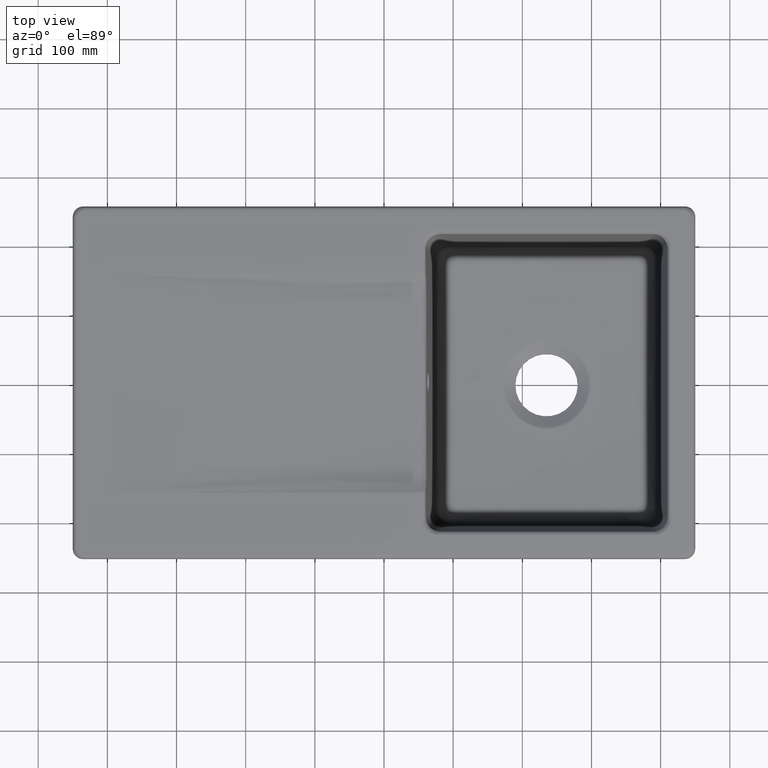
[diagram: clean part render]
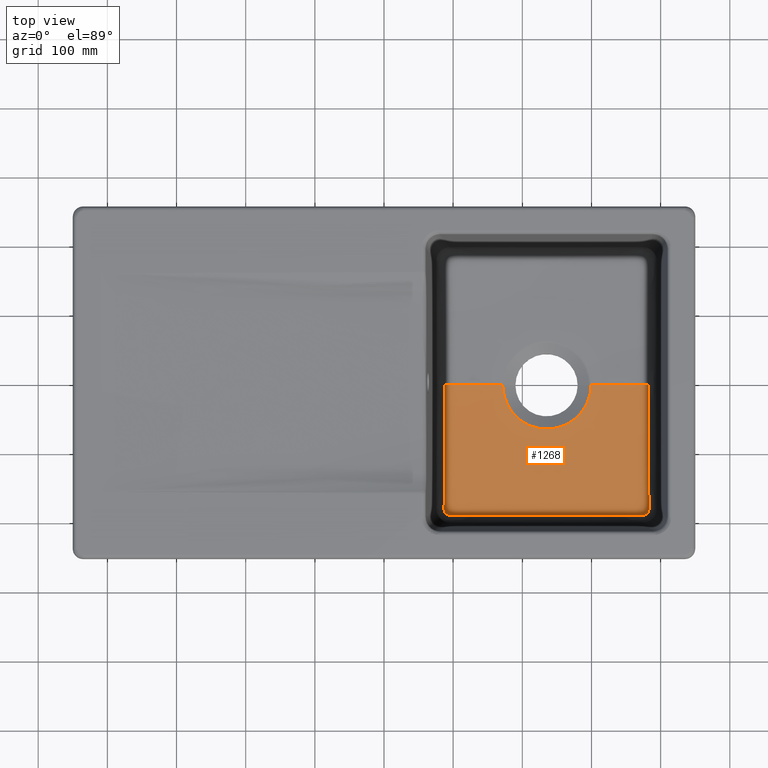
[diagram: same view with one face highlighted and labeled with its STEP entity id]
A machine part, top view. The second image highlights one B-rep face of the part: STEP entity #1268.
In plain terms, the highlighted face is a freeform B-spline surface patch.
Its self-contained STEP definition (entity closure, byte-faithful):
#58=B_SPLINE_SURFACE_WITH_KNOTS('',3,3,((#10908,#10909,#10910,#10911,#10912,
#10913,#10914,#10915,#10916,#10917,#10918,#10919,#10920,#10921,#10922,#10923,
#10924,#10925,#10926,#10927,#10928,#10929,#10930,#10931,#10932,#10933,#10934,
#10935,#10936,#10937,#10938,#10939,#10940),(#10941,#10942,#10943,#10944,
#10945,#10946,#10947,#10948,#10949,#10950,#10951,#10952,#10953,#10954,#10955,
#10956,#10957,#10958,#10959,#10960,#10961,#10962,#10963,#10964,#10965,#10966,
#10967,#10968,#10969,#10970,#10971,#10972,#10973),(#10974,#10975,#10976,
#10977,#10978,#10979,#10980,#10981,#10982,#10983,#10984,#10985,#10986,#10987,
#10988,#10989,#10990,#10991,#10992,#10993,#10994,#10995,#10996,#10997,#10998,
#10999,#11000,#11001,#11002,#11003,#11004,#11005,#11006),(#11007,#11008,
#11009,#11010,#11011,#11012,#11013,#11014,#11015,#11016,#11017,#11018,#11019,
#11020,#11021,#11022,#11023,#11024,#11025,#11026,#11027,#11028,#11029,#11030,
#11031,#11032,#11033,#11034,#11035,#11036,#11037,#11038,#11039),(#11040,
#11041,#11042,#11043,#11044,#11045,#11046,#11047,#11048,#11049,#11050,#11051,
#11052,#11053,#11054,#11055,#11056,#11057,#11058,#11059,#11060,#11061,#11062,
#11063,#11064,#11065,#11066,#11067,#11068,#11069,#11070,#11071,#11072)),
 .UNSPECIFIED.,.F.,.F.,.F.,(4,1,4),(4,1,1,1,1,1,1,1,1,1,1,1,1,1,1,1,1,1,
1,1,1,1,1,1,1,1,1,1,1,1,4),(0.,0.5,1.),(0.,0.0182822600109701,0.0360122226244295,
0.055209519864422,0.0751187496988799,0.10509401807433,0.135114973698303,
0.19571552190458,0.256528921859647,0.317281157809423,0.347584041887708,
0.408211742375118,0.438983846352484,0.459736538004095,0.480038020137505,
0.489772786739409,0.499091398083266,0.508408575169084,0.518143376880388,
0.559134169580644,0.589793766048091,0.65030788970817,0.710896522901048,
0.802137506428954,0.832585011789854,0.862887276247565,0.892955427108568,
0.922935094436198,0.94283156446179,0.979716037055675,1.),.UNSPECIFIED.);
#330=B_SPLINE_CURVE_WITH_KNOTS('',3,(#7163,#7164,#7165,#7166,#7167,#7168,
#7169,#7170,#7171,#7172,#7173,#7174,#7175,#7176,#7177,#7178,#7179,#7180,
#7181,#7182,#7183,#7184,#7185,#7186,#7187,#7188,#7189,#7190,#7191,#7192,
#7193,#7194,#7195,#7196,#7197,#7198,#7199,#7200,#7201,#7202,#7203,#7204,
#7205,#7206,#7207,#7208,#7209,#7210,#7211,#7212,#7213,#7214,#7215,#7216,
#7217,#7218,#7219,#7220,#7221,#7222,#7223,#7224,#7225,#7226,#7227,#7228,
#7229,#7230,#7231,#7232,#7233,#7234,#7235,#7236,#7237,#7238,#7239,#7240,
#7241,#7242,#7243,#7244,#7245,#7246,#7247,#7248,#7249,#7250,#7251,#7252,
#7253,#7254,#7255,#7256,#7257,#7258,#7259,#7260,#7261,#7262,#7263,#7264,
#7265,#7266,#7267,#7268,#7269,#7270,#7271,#7272,#7273,#7274,#7275,#7276,
#7277,#7278,#7279,#7280,#7281,#7282,#7283,#7284,#7285,#7286,#7287,#7288,
#7289,#7290,#7291,#7292,#7293,#7294,#7295,#7296,#7297,#7298,#7299,#7300,
#7301,#7302,#7303,#7304,#7305,#7306),.UNSPECIFIED.,.F.,.F.,(4,2,2,2,2,2,
2,2,2,2,2,2,2,2,1,2,2,2,2,2,2,2,1,2,2,2,2,2,2,2,2,2,2,2,2,1,2,2,2,2,2,1,
2,2,2,2,1,1,1,2,2,2,2,2,2,1,1,2,2,2,2,2,2,2,2,2,2,1,1,2,2,2,2,2,1,2,2,4),
(0.,0.0312499999999965,0.035156249999996,0.0390624999999955,0.0468749999999946,
0.0624999999999929,0.0703124999999921,0.0742187499999916,0.0781249999999912,
0.0937499999999891,0.124999999999985,0.140624999999983,0.142578124999982,
0.14355468749998,0.144531249999979,0.148437499999973,0.156249999999961,
0.187499999999912,0.218749999999864,0.23437499999984,0.242187499999828,
0.246093749999821,0.248046874999816,0.249023437499815,0.249999999999814,
0.312499999999784,0.343749999999769,0.359374999999762,0.367187499999758,
0.374999999999754,0.43749999999972,0.468749999999704,0.484374999999695,
0.492187499999691,0.496093749999689,0.498046874999688,0.499023437499687,
0.499999999999687,0.515624999999673,0.523437499999667,0.527343749999663,
0.529296874999661,0.53027343749966,0.531249999999659,0.546874999999646,
0.554687499999639,0.558593749999636,0.560546874999634,0.561523437499633,
0.562011718749633,0.562499999999632,0.593749999999605,0.609374999999592,
0.617187499999585,0.621093749999582,0.623046874999581,0.624023437499582,
0.624511718749583,0.624999999999584,0.687499999999654,0.718749999999689,
0.734374999999707,0.742187499999715,0.749999999999724,0.812499999999793,
0.843749999999827,0.859374999999845,0.867187499999853,0.871093749999858,
0.87304687499986,0.874999999999862,0.906249999999896,0.921874999999913,
0.929687499999922,0.933593749999926,0.935546874999928,0.937499999999931,
1.),.UNSPECIFIED.);
#334=B_SPLINE_CURVE_WITH_KNOTS('',3,(#7482,#7483,#7484,#7485,#7486,#7487,
#7488,#7489,#7490,#7491,#7492,#7493,#7494,#7495,#7496,#7497,#7498,#7499,
#7500,#7501,#7502,#7503,#7504,#7505,#7506,#7507,#7508,#7509,#7510,#7511,
#7512,#7513,#7514,#7515,#7516,#7517,#7518,#7519,#7520,#7521,#7522,#7523,
#7524,#7525,#7526,#7527,#7528,#7529,#7530,#7531,#7532,#7533,#7534,#7535,
#7536,#7537),.UNSPECIFIED.,.F.,.F.,(4,2,2,2,2,2,2,2,2,2,2,2,2,2,2,2,2,2,
2,2,2,2,2,2,2,2,2,4),(0.,0.124999999999994,0.187499999999991,0.218749999999989,
0.234374999999988,0.249999999999987,0.312499999999984,0.343749999999983,
0.359374999999982,0.367187499999982,0.371093749999982,0.374999999999982,
0.437499999999983,0.468749999999984,0.499999999999984,0.531249999999985,
0.562499999999985,0.593749999999986,0.609374999999986,0.617187499999987,
0.621093749999987,0.624999999999988,0.687499999999989,0.71874999999999,
0.734374999999991,0.749999999999991,0.874999999999996,1.),.UNSPECIFIED.);
#335=B_SPLINE_CURVE_WITH_KNOTS('',3,(#7582,#7583,#7584,#7585,#7586,#7587),
 .UNSPECIFIED.,.F.,.F.,(4,2,4),(0.,0.5,1.),.UNSPECIFIED.);
#337=B_SPLINE_CURVE_WITH_KNOTS('',3,(#7631,#7632,#7633,#7634,#7635,#7636,
#7637,#7638,#7639,#7640,#7641,#7642,#7643,#7644,#7645,#7646,#7647,#7648,
#7649,#7650,#7651,#7652,#7653,#7654,#7655,#7656,#7657,#7658,#7659,#7660,
#7661,#7662,#7663,#7664,#7665,#7666,#7667,#7668,#7669),.UNSPECIFIED.,.F.,
 .F.,(4,2,2,2,1,2,2,2,2,2,1,2,2,2,2,2,2,1,2,2,4),(0.,0.124999999999997,
0.187499999999995,0.218749999999994,0.234374999999994,0.242187499999994,
0.249999999999994,0.374999999999993,0.437499999999993,0.468749999999993,
0.484374999999993,0.492187499999993,0.499999999999993,0.624999999999994,
0.749999999999996,0.812499999999997,0.843749999999998,0.859374999999998,
0.867187499999998,0.874999999999998,1.),.UNSPECIFIED.);
#411=B_SPLINE_CURVE_WITH_KNOTS('',3,(#10851,#10852,#10853,#10854,#10855,
#10856),.UNSPECIFIED.,.F.,.F.,(4,2,4),(0.,0.5,1.),.UNSPECIFIED.);
#412=B_SPLINE_CURVE_WITH_KNOTS('',3,(#10893,#10894,#10895,#10896),
 .UNSPECIFIED.,.F.,.F.,(4,4),(0.,1.),.UNSPECIFIED.);
#413=B_SPLINE_CURVE_WITH_KNOTS('',3,(#10897,#10898,#10899,#10900),
 .UNSPECIFIED.,.F.,.F.,(4,4),(0.,1.),.UNSPECIFIED.);
#414=B_SPLINE_CURVE_WITH_KNOTS('',3,(#10902,#10903,#10904,#10905,#10906,
#10907),.UNSPECIFIED.,.F.,.F.,(4,2,4),(0.,0.5,1.),.UNSPECIFIED.);
#1268=ADVANCED_FACE('',(#1623),#58,.F.);
#1623=FACE_OUTER_BOUND('',#1955,.T.);
#1955=EDGE_LOOP('',(#2667,#2668,#2669,#2670,#2671,#2672,#2673,#2674));
#2667=ORIENTED_EDGE('',*,*,#4483,.F.);
#2668=ORIENTED_EDGE('',*,*,#4242,.T.);
#2669=ORIENTED_EDGE('',*,*,#4484,.F.);
#2670=ORIENTED_EDGE('',*,*,#4485,.F.);
#2671=ORIENTED_EDGE('',*,*,#4482,.T.);
#2672=ORIENTED_EDGE('',*,*,#4248,.T.);
#2673=ORIENTED_EDGE('',*,*,#4250,.T.);
#2674=ORIENTED_EDGE('',*,*,#4252,.T.);
#3778=VERTEX_POINT('',#7161);
#3780=VERTEX_POINT('',#7307);
#3783=VERTEX_POINT('',#7475);
#3784=VERTEX_POINT('',#7481);
#3785=VERTEX_POINT('',#7581);
#3786=VERTEX_POINT('',#7630);
#3933=VERTEX_POINT('',#10844);
#3934=VERTEX_POINT('',#10901);
#4242=EDGE_CURVE('',#3780,#3778,#330,.T.);
#4248=EDGE_CURVE('',#3783,#3784,#334,.T.);
#4250=EDGE_CURVE('',#3784,#3785,#335,.T.);
#4252=EDGE_CURVE('',#3785,#3786,#337,.T.);
#4482=EDGE_CURVE('',#3933,#3783,#411,.T.);
#4483=EDGE_CURVE('',#3780,#3786,#412,.T.);
#4484=EDGE_CURVE('',#3934,#3778,#413,.T.);
#4485=EDGE_CURVE('',#3933,#3934,#414,.T.);
#7161=CARTESIAN_POINT('',(171.727762321832,-0.000572993895407805,-199.62845366476));
#7163=CARTESIAN_POINT('',(299.273550193894,7.00759071267483E-15,-199.604249388606));
#7164=CARTESIAN_POINT('',(299.269840532558,-2.16390706907349,-199.604235624581));
#7165=CARTESIAN_POINT('',(299.153841019433,-4.24747309736526,-199.604130076474));
#7166=CARTESIAN_POINT('',(298.926286625526,-6.53774754236078,-199.603908011737));
#7167=CARTESIAN_POINT('',(298.899654574148,-6.79147627028867,-199.603881902703));
#7168=CARTESIAN_POINT('',(298.843795265492,-7.29756859948752,-199.603826813834));
#7169=CARTESIAN_POINT('',(298.836170972606,-7.36075327174401,-199.603821815979));
#7170=CARTESIAN_POINT('',(298.781486559071,-7.81854985748282,-199.603795589657));
#7171=CARTESIAN_POINT('',(298.735472837139,-8.1816502582202,-199.603790649915));
#7172=CARTESIAN_POINT('',(298.561217847271,-9.4412479772853,-199.603813465232));
#7173=CARTESIAN_POINT('',(298.39777579229,-10.508102834118,-199.603878856739));
#7174=CARTESIAN_POINT('',(298.032428272484,-12.430875917511,-199.604052186149));
#7175=CARTESIAN_POINT('',(297.890262800521,-13.1256385320876,-199.604122502502));
#7176=CARTESIAN_POINT('',(297.638365820165,-14.2453353747201,-199.604246778843));
#7177=CARTESIAN_POINT('',(297.523591506371,-14.7352747795426,-199.604302988952));
#7178=CARTESIAN_POINT('',(297.299012811196,-15.6436633155172,-199.604406841275));
#7179=CARTESIAN_POINT('',(297.184853743103,-16.0841751471218,-199.604457450122));
#7180=CARTESIAN_POINT('',(296.608499940674,-18.2195012990137,-199.604703909796));
#7181=CARTESIAN_POINT('',(296.130489990299,-19.7126341132357,-199.604880007368));
#7182=CARTESIAN_POINT('',(294.769109791655,-23.5922975131012,-199.605345156912));
#7183=CARTESIAN_POINT('',(293.968971646076,-25.3829364750972,-199.605571071076));
#7184=CARTESIAN_POINT('',(293.218743310676,-27.018129823399,-199.605783836886));
#7185=CARTESIAN_POINT('',(293.041002998343,-27.3872302850941,-199.605833739909));
#7186=CARTESIAN_POINT('',(292.933135516572,-27.6106152914318,-199.605866241695));
#7187=CARTESIAN_POINT('',(292.92241781289,-27.6327648952868,-199.605869524677));
#7188=CARTESIAN_POINT('',(292.908255883663,-27.6619905878416,-199.605873956667));
#7189=CARTESIAN_POINT('',(292.848635048107,-27.7848853786534,-199.605892744999));
#7190=CARTESIAN_POINT('',(292.742791405979,-28.0009882507786,-199.605925844574));
#7191=CARTESIAN_POINT('',(292.477836804825,-28.5381062782322,-199.606008249088));
#7192=CARTESIAN_POINT('',(292.21137208492,-29.0596244640707,-199.606088931663));
#7193=CARTESIAN_POINT('',(291.570522688197,-30.2820432147807,-199.606279265008));
#7194=CARTESIAN_POINT('',(291.141583963824,-31.0580362315344,-199.606401747474));
#7195=CARTESIAN_POINT('',(289.006321766154,-34.7524661412308,-199.606992143981));
#7196=CARTESIAN_POINT('',(287.332303133832,-37.1164389070733,-199.607394015236));
#7197=CARTESIAN_POINT('',(284.419983456189,-40.8700208922557,-199.608057208955));
#7198=CARTESIAN_POINT('',(283.182322649562,-42.2600080419257,-199.608318531421));
#7199=CARTESIAN_POINT('',(281.815326313136,-43.7367969139373,-199.608605270976));
#7200=CARTESIAN_POINT('',(281.440089963518,-44.1272326668004,-199.608683309201));
#7201=CARTESIAN_POINT('',(281.008797345243,-44.5700063302589,-199.608774066602));
#7202=CARTESIAN_POINT('',(280.886901207734,-44.6937403147566,-199.608799935688));
#7203=CARTESIAN_POINT('',(280.737713912196,-44.844369728702,-199.608832165282));
#7204=CARTESIAN_POINT('',(280.693590864178,-44.8887479126318,-199.608841812803));
#7205=CARTESIAN_POINT('',(280.635891730381,-44.94664181899,-199.608854640668));
#7206=CARTESIAN_POINT('',(280.609163208819,-44.9734201371417,-199.608860643746));
#7207=CARTESIAN_POINT('',(280.585627747182,-44.9969567261638,-199.608866030556));
#7208=CARTESIAN_POINT('',(280.570648090966,-45.0119284629216,-199.608869484816));
#7209=CARTESIAN_POINT('',(280.598718796904,-44.9839096549387,-199.608862884786));
#7210=CARTESIAN_POINT('',(277.869768610548,-47.708195239666,-199.609503061415));
#7211=CARTESIAN_POINT('',(274.812499070289,-50.2812306334656,-199.61019293948));
#7212=CARTESIAN_POINT('',(269.649741802729,-53.7926931758676,-199.611316703695));
#7213=CARTESIAN_POINT('',(267.833503216759,-54.9050432735399,-199.611706115602));
#7214=CARTESIAN_POINT('',(264.968846298751,-56.4601959072382,-199.612312415762));
#7215=CARTESIAN_POINT('',(263.990546194635,-56.9596450081439,-199.612518212822));
#7216=CARTESIAN_POINT('',(262.489096237494,-57.676936130162,-199.612832446856));
#7217=CARTESIAN_POINT('',(261.98295454352,-57.9107183133615,-199.612938114605));
#7218=CARTESIAN_POINT('',(260.959594518036,-58.3670523488921,-199.613151295036));
#7219=CARTESIAN_POINT('',(260.403533783387,-58.6057044152544,-199.613266866763));
#7220=CARTESIAN_POINT('',(256.04949346332,-60.4104583226439,-199.614170246152));
#7221=CARTESIAN_POINT('',(252.016824433648,-61.6269821139195,-199.614916481672));
#7222=CARTESIAN_POINT('',(245.905959780804,-62.8482366232828,-199.615948202636));
#7223=CARTESIAN_POINT('',(243.859991784586,-63.1526677006278,-199.616396331725));
#7224=CARTESIAN_POINT('',(240.759359767425,-63.4609407604423,-199.617224427016));
#7225=CARTESIAN_POINT('',(239.720565500203,-63.5390870917548,-199.617526440296));
#7226=CARTESIAN_POINT('',(238.151517311688,-63.6196044290962,-199.618018359723));
#7227=CARTESIAN_POINT('',(237.626471433898,-63.640079524676,-199.618188815985));
#7228=CARTESIAN_POINT('',(236.833521658217,-63.6590893345589,-199.618454214788));
#7229=CARTESIAN_POINT('',(236.568240914908,-63.663455710135,-199.618544300115));
#7230=CARTESIAN_POINT('',(236.169389098933,-63.6670197094028,-199.618681855338));
#7231=CARTESIAN_POINT('',(235.969735524504,-63.6680567943128,-199.618751239757));
#7232=CARTESIAN_POINT('',(235.769849300509,-63.66797439826,-199.618821534125));
#7233=CARTESIAN_POINT('',(235.636552229344,-63.6676704612603,-199.618868599218));
#7234=CARTESIAN_POINT('',(235.51553928392,-63.6670671079716,-199.618911576195));
#7235=CARTESIAN_POINT('',(235.30580259847,-63.6658055467795,-199.618986229552));
#7236=CARTESIAN_POINT('',(234.672894642806,-63.6713814324954,-199.619071820285));
#7237=CARTESIAN_POINT('',(233.086208368352,-63.62560775173,-199.619223187342));
#7238=CARTESIAN_POINT('',(232.453397659437,-63.6003135742308,-199.619277473143));
#7239=CARTESIAN_POINT('',(231.354328127307,-63.5338925066118,-199.619364645089));
#7240=CARTESIAN_POINT('',(230.962770312725,-63.5070191522065,-199.619394659608));
#7241=CARTESIAN_POINT('',(230.337625429807,-63.4578127685665,-199.619441116927));
#7242=CARTESIAN_POINT('',(230.015629227517,-63.4309717604852,-199.619464704471));
#7243=CARTESIAN_POINT('',(229.67959621995,-63.4003729942119,-199.61948883029));
#7244=CARTESIAN_POINT('',(229.452465513813,-63.3790926297628,-199.61950503378));
#7245=CARTESIAN_POINT('',(229.282227927754,-63.3625579500713,-199.619517079347));
#7246=CARTESIAN_POINT('',(228.235862009586,-63.2590189241484,-199.619590814059));
#7247=CARTESIAN_POINT('',(227.2286627867,-63.1358316014941,-199.619693577507));
#7248=CARTESIAN_POINT('',(225.68390226905,-62.9084345273022,-199.619897739973));
#7249=CARTESIAN_POINT('',(225.163313283356,-62.825451525681,-199.619974130129));
#7250=CARTESIAN_POINT('',(224.373801790447,-62.689230770206,-199.620101213451));
#7251=CARTESIAN_POINT('',(223.976888292721,-62.6181829548676,-199.620167879614));
#7252=CARTESIAN_POINT('',(223.510010883161,-62.5299316598622,-199.620251123175));
#7253=CARTESIAN_POINT('',(223.27561415796,-62.4844370428897,-199.620294111344));
#7254=CARTESIAN_POINT('',(223.174952564447,-62.4646429360494,-199.62031282762));
#7255=CARTESIAN_POINT('',(223.10779902557,-62.4513806527505,-199.620325370197));
#7256=CARTESIAN_POINT('',(223.102862045485,-62.4504259294413,-199.620326272389));
#7257=CARTESIAN_POINT('',(219.054317147125,-61.6439677080936,-199.621089240458));
#7258=CARTESIAN_POINT('',(216.109567690488,-60.6870286247917,-199.621655302677));
#7259=CARTESIAN_POINT('',(213.164437535751,-59.6388147017971,-199.622227615664));
#7260=CARTESIAN_POINT('',(212.426592144149,-59.3503985788373,-199.622372250008));
#7261=CARTESIAN_POINT('',(211.672543231987,-59.0496938474524,-199.622520058632));
#7262=CARTESIAN_POINT('',(211.480029448268,-58.9711619230191,-199.622557803945));
#7263=CARTESIAN_POINT('',(211.278525871263,-58.8885135079723,-199.622597139624));
#7264=CARTESIAN_POINT('',(211.22590809461,-58.8668056849956,-199.62260737111));
#7265=CARTESIAN_POINT('',(211.168736701857,-58.8431829674813,-199.622618398002));
#7266=CARTESIAN_POINT('',(211.145590407266,-58.8336048351391,-199.622622831361));
#7267=CARTESIAN_POINT('',(211.128096340543,-58.8263610225391,-199.622626113496));
#7268=CARTESIAN_POINT('',(211.12263617025,-58.8241002083593,-199.622627115103));
#7269=CARTESIAN_POINT('',(211.119448736312,-58.8227806094479,-199.622627692835));
#7270=CARTESIAN_POINT('',(211.148919950571,-58.834974705219,-199.622622562209));
#7271=CARTESIAN_POINT('',(207.023544956643,-57.1280179049041,-199.623341524642));
#7272=CARTESIAN_POINT('',(203.22415275936,-55.0546753316048,-199.623979468553));
#7273=CARTESIAN_POINT('',(198.046220183,-51.5520818721623,-199.624823662318));
#7274=CARTESIAN_POINT('',(196.405461710238,-50.3189676162252,-199.625086272133));
#7275=CARTESIAN_POINT('',(194.073644524545,-48.3902567705251,-199.625452050598));
#7276=CARTESIAN_POINT('',(193.317909253505,-47.7341591801092,-199.625569287309));
#7277=CARTESIAN_POINT('',(192.216657871362,-46.7324578869765,-199.625738113333));
#7278=CARTESIAN_POINT('',(191.854965053698,-46.3956304131006,-199.625793217163));
#7279=CARTESIAN_POINT('',(191.14235792293,-45.7164795897002,-199.625901082603));
#7280=CARTESIAN_POINT('',(190.827265267019,-45.4099122246593,-199.625948495708));
#7281=CARTESIAN_POINT('',(187.395096915628,-41.9840361757639,-199.626460950231));
#7282=CARTESIAN_POINT('',(184.710790229223,-38.6848450499655,-199.626836086787));
#7283=CARTESIAN_POINT('',(181.254045714194,-33.4915085304012,-199.627278505409));
#7284=CARTESIAN_POINT('',(180.196614944554,-31.7194074330048,-199.627405929328));
#7285=CARTESIAN_POINT('',(178.751204706906,-29.0103996607675,-199.6275670157));
#7286=CARTESIAN_POINT('',(178.292852757501,-28.0989123725687,-199.627615702828));
#7287=CARTESIAN_POINT('',(177.640276565304,-26.7202070265303,-199.627681223312));
#7288=CARTESIAN_POINT('',(177.322726004481,-26.0279849767339,-199.627712105995));
#7289=CARTESIAN_POINT('',(176.967487577589,-25.2156371138696,-199.627744850484));
#7290=CARTESIAN_POINT('',(176.818501670178,-24.8664969849021,-199.627758179883));
#7291=CARTESIAN_POINT('',(176.719901311518,-24.6335197626948,-199.627766909719));
#7292=CARTESIAN_POINT('',(176.659058323615,-24.4883222487443,-199.627772227784));
#7293=CARTESIAN_POINT('',(176.03562855501,-22.990556485229,-199.627826238972));
#7294=CARTESIAN_POINT('',(175.392656285809,-21.3111711121974,-199.627855089979));
#7295=CARTESIAN_POINT('',(174.443878485065,-18.3491970731452,-199.627865397864));
#7296=CARTESIAN_POINT('',(174.130792805923,-17.2880212590606,-199.62786333896));
#7297=CARTESIAN_POINT('',(173.681426439907,-15.5808464368911,-199.6278520082));
#7298=CARTESIAN_POINT('',(173.535023039896,-14.9925566771222,-199.62784685754));
#7299=CARTESIAN_POINT('',(173.322595702283,-14.080740502908,-199.627837070873));
#7300=CARTESIAN_POINT('',(173.218178545561,-13.6174876069707,-199.62783166237));
#7301=CARTESIAN_POINT('',(173.116868756869,-13.1431232431951,-199.627825481095));
#7302=CARTESIAN_POINT('',(173.050066590316,-12.8244011157474,-199.627821188516));
#7303=CARTESIAN_POINT('',(173.00952761075,-12.6265782422586,-199.627818423249));
#7304=CARTESIAN_POINT('',(172.180137880586,-8.5140174526497,-199.627759521305));
#7305=CARTESIAN_POINT('',(171.708124328239,-4.43162993315887,-199.627959798969));
#7306=CARTESIAN_POINT('',(171.725373394336,1.82839979499623E-16,-199.628417149039));
#7307=CARTESIAN_POINT('',(299.27118183124,-0.000582822346712521,-199.604291467803));
#7475=CARTESIAN_POINT('',(94.8928084187262,-188.305287693771,-189.588671180414));
#7481=CARTESIAN_POINT('',(375.106947801174,-188.305506058049,-189.5885588756));
#7482=CARTESIAN_POINT('',(94.8928084187262,-188.305287693771,-189.588671180414));
#7483=CARTESIAN_POINT('',(107.205322352133,-188.246177811403,-190.277434960414));
#7484=CARTESIAN_POINT('',(119.122260321844,-188.192895698957,-190.854221967858));
#7485=CARTESIAN_POINT('',(136.555783794353,-188.128489138432,-191.579554026841));
#7486=CARTESIAN_POINT('',(142.291712391833,-188.109106698758,-191.798052458112));
#7487=CARTESIAN_POINT('',(150.81961629223,-188.083663186678,-192.093961085353));
#7488=CARTESIAN_POINT('',(153.649740257914,-188.075773214721,-192.187285504709));
#7489=CARTESIAN_POINT('',(157.881632247001,-188.064512176822,-192.319641766047));
#7490=CARTESIAN_POINT('',(159.290051935942,-188.060850580659,-192.362488461161));
#7491=CARTESIAN_POINT('',(162.10343857733,-188.053611583293,-192.445689983994));
#7492=CARTESIAN_POINT('',(163.459312976273,-188.050160332475,-192.484676206648));
#7493=CARTESIAN_POINT('',(170.723499011926,-188.031513088005,-192.687187709116));
#7494=CARTESIAN_POINT('',(176.514402489006,-188.02150719668,-192.827943579194));
#7495=CARTESIAN_POINT('',(185.237549954931,-188.00357979951,-193.009513087298));
#7496=CARTESIAN_POINT('',(188.152476682903,-187.99764861554,-193.065102557281));
#7497=CARTESIAN_POINT('',(192.549964709281,-187.989639093482,-193.141318806656));
#7498=CARTESIAN_POINT('',(194.01998884037,-187.987111982281,-193.165529168816));
#7499=CARTESIAN_POINT('',(196.233215846235,-187.983588840742,-193.20007764898));
#7500=CARTESIAN_POINT('',(196.97232414341,-187.982458691667,-193.211299273826));
#7501=CARTESIAN_POINT('',(198.083280552459,-187.980833205105,-193.2276928758));
#7502=CARTESIAN_POINT('',(198.45398961797,-187.980302971676,-193.233084269031));
#7503=CARTESIAN_POINT('',(199.196163230083,-187.979266012245,-193.243721250038));
#7504=CARTESIAN_POINT('',(199.538544583928,-187.978797992775,-193.248562278934));
#7505=CARTESIAN_POINT('',(206.353315074381,-187.96972700461,-193.343379367174));
#7506=CARTESIAN_POINT('',(212.576159231097,-187.939019207392,-193.409577962278));
#7507=CARTESIAN_POINT('',(221.407678098176,-187.933406925674,-193.475730155261));
#7508=CARTESIAN_POINT('',(224.276647510342,-187.937032395704,-193.492246806653));
#7509=CARTESIAN_POINT('',(229.80242863344,-187.949824508141,-193.514330347973));
#7510=CARTESIAN_POINT('',(232.412514901906,-187.956559832953,-193.519897301486));
#7511=CARTESIAN_POINT('',(237.5439566194,-187.956407606904,-193.520121196963));
#7512=CARTESIAN_POINT('',(240.153308377651,-187.948907816249,-193.514733010392));
#7513=CARTESIAN_POINT('',(245.669114103334,-187.92868789659,-193.492917327079));
#7514=CARTESIAN_POINT('',(248.535278841791,-187.9237093534,-193.476489830148));
#7515=CARTESIAN_POINT('',(254.425566790772,-187.931398604971,-193.432476782512));
#7516=CARTESIAN_POINT('',(257.454295318898,-187.941646079945,-193.404891231433));
#7517=CARTESIAN_POINT('',(262.098972315072,-187.95755384243,-193.354995536586));
#7518=CARTESIAN_POINT('',(263.664077518621,-187.962929056986,-193.336943454363));
#7519=CARTESIAN_POINT('',(266.033530323024,-187.969812186556,-193.307710849072));
#7520=CARTESIAN_POINT('',(266.826976115636,-187.971908848646,-193.297607528078));
#7521=CARTESIAN_POINT('',(268.022104728496,-187.974586177186,-193.281910491867));
#7522=CARTESIAN_POINT('',(268.421307279829,-187.975400605732,-193.276587801578));
#7523=CARTESIAN_POINT('',(269.221280867383,-187.976844071277,-193.265761139412));
#7524=CARTESIAN_POINT('',(269.651988857957,-187.977511982422,-193.259840007249));
#7525=CARTESIAN_POINT('',(275.968762050225,-187.985714500542,-193.171818120845));
#7526=CARTESIAN_POINT('',(281.820573129348,-187.997269262947,-193.070456885281));
#7527=CARTESIAN_POINT('',(290.551375317456,-188.015456873165,-192.888935053829));
#7528=CARTESIAN_POINT('',(293.454390022949,-188.021246430142,-192.8235081629));
#7529=CARTESIAN_POINT('',(297.807768577609,-188.029929649226,-192.717718827461));
#7530=CARTESIAN_POINT('',(299.258630128342,-188.032891301733,-192.681180489943));
#7531=CARTESIAN_POINT('',(302.161100534748,-188.03922703422,-192.605503724293));
#7532=CARTESIAN_POINT('',(303.658996579412,-188.042718601605,-192.565075875654));
#7533=CARTESIAN_POINT('',(316.315768796558,-188.074891698102,-192.212496897802));
#7534=CARTESIAN_POINT('',(327.637386019766,-188.105269930121,-191.821472289886));
#7535=CARTESIAN_POINT('',(350.87794429945,-188.1920644634,-190.854070048983));
#7536=CARTESIAN_POINT('',(362.791327274893,-188.246367762099,-190.277237301033));
#7537=CARTESIAN_POINT('',(375.106947801174,-188.305506058049,-189.5885588756));
#7581=CARTESIAN_POINT('',(383.103446703932,-180.286696462736,-189.717989585248));
#7582=CARTESIAN_POINT('',(375.106947801173,-188.305506058049,-189.5885588756));
#7583=CARTESIAN_POINT('',(377.219390622439,-188.315649783123,-189.470432972575));
#7584=CARTESIAN_POINT('',(379.310915575882,-187.455785246781,-189.415724096933));
#7585=CARTESIAN_POINT('',(382.262749095059,-184.494986110356,-189.463549286828));
#7586=CARTESIAN_POINT('',(383.116526691792,-182.39711456612,-189.566233403684));
#7587=CARTESIAN_POINT('',(383.103446703932,-180.286696462736,-189.717989585248));
#7630=CARTESIAN_POINT('',(382.530524730426,-6.67283187361829E-11,-196.184390104472));
#7631=CARTESIAN_POINT('',(383.103446703932,-180.286696462736,-189.717989585248));
#7632=CARTESIAN_POINT('',(383.054137248023,-172.330758770986,-190.290086044677));
#7633=CARTESIAN_POINT('',(383.011509027148,-164.605958233674,-190.807687551485));
#7634=CARTESIAN_POINT('',(382.950178598819,-153.355461469133,-191.51179140803));
#7635=CARTESIAN_POINT('',(382.930331218144,-149.661331609065,-191.734497860019));
#7636=CARTESIAN_POINT('',(382.901779284141,-144.202005694637,-192.051821737241));
#7637=CARTESIAN_POINT('',(382.892472901219,-142.395867778298,-192.154806209851));
#7638=CARTESIAN_POINT('',(382.878934736579,-139.706772854458,-192.305247063891));
#7639=CARTESIAN_POINT('',(382.872271634602,-138.36725260589,-192.379458447143));
#7640=CARTESIAN_POINT('',(382.86579259976,-137.035201449648,-192.452183548547));
#7641=CARTESIAN_POINT('',(382.861517286874,-136.148818659797,-192.500339646102));
#7642=CARTESIAN_POINT('',(382.859651278481,-135.759142636982,-192.521419680588));
#7643=CARTESIAN_POINT('',(382.81984298684,-127.35716367204,-192.973391833762));
#7644=CARTESIAN_POINT('',(382.788463202822,-119.666427950954,-193.349455462872));
#7645=CARTESIAN_POINT('',(382.744207311563,-108.417447869975,-193.850449740716));
#7646=CARTESIAN_POINT('',(382.730053932968,-104.715425251884,-194.006912591093));
#7647=CARTESIAN_POINT('',(382.709655272132,-99.2268738918012,-194.22699861944));
#7648=CARTESIAN_POINT('',(382.702970655843,-97.4081116269745,-194.297924770122));
#7649=CARTESIAN_POINT('',(382.693284046345,-94.6949196170766,-194.400799172218));
#7650=CARTESIAN_POINT('',(382.688533310532,-93.3420528833077,-194.4513575593));
#7651=CARTESIAN_POINT('',(382.683975140085,-91.9945220506656,-194.500622804661));
#7652=CARTESIAN_POINT('',(382.680985191863,-91.097323986798,-194.5331816558));
#7653=CARTESIAN_POINT('',(382.679633698838,-90.68622141711,-194.547998966494));
#7654=CARTESIAN_POINT('',(382.65307629015,-82.4518163661463,-194.842369764914));
#7655=CARTESIAN_POINT('',(382.624752225607,-74.8888708264043,-195.077539139113));
#7656=CARTESIAN_POINT('',(382.588458441394,-59.9437811454128,-195.476315153566));
#7657=CARTESIAN_POINT('',(382.580432686227,-52.517120628615,-195.640884880951));
#7658=CARTESIAN_POINT('',(382.561932257488,-41.4057148493414,-195.837940500529));
#7659=CARTESIAN_POINT('',(382.556696817783,-37.6922350811345,-195.895498032887));
#7660=CARTESIAN_POINT('',(382.550036855048,-32.0659209876066,-195.970280474747));
#7661=CARTESIAN_POINT('',(382.547964466865,-30.1809950089295,-195.993280619218));
#7662=CARTESIAN_POINT('',(382.544704047245,-27.3340580716145,-196.024954295323));
#7663=CARTESIAN_POINT('',(382.543064445358,-25.9059557862579,-196.04008433942));
#7664=CARTESIAN_POINT('',(382.541583557444,-24.4720411451299,-196.054164843523));
#7665=CARTESIAN_POINT('',(382.540648851565,-23.514933792763,-196.063319699315));
#7666=CARTESIAN_POINT('',(382.540236137714,-23.0691799361822,-196.067478606874));
#7667=CARTESIAN_POINT('',(382.53284804053,-14.3475698789797,-196.146499145205));
#7668=CARTESIAN_POINT('',(382.530689384825,-6.69962432936453,-196.183421543926));
#7669=CARTESIAN_POINT('',(382.530522260224,-4.98732999343332E-14,-196.184347354025));
#10844=CARTESIAN_POINT('',(86.8964019951604,-180.286618370483,-189.717826167532));
#10851=CARTESIAN_POINT('',(86.8964019951604,-180.286618370483,-189.717826167532));
#10852=CARTESIAN_POINT('',(86.8832892640871,-182.396321139124,-189.566135360807));
#10853=CARTESIAN_POINT('',(87.7332401434783,-184.488131387854,-189.463711859104));
#10854=CARTESIAN_POINT('',(90.6834763060324,-187.453114549347,-189.415603603013));
#10855=CARTESIAN_POINT('',(92.7792910315439,-188.315434262118,-189.47044071728));
#10856=CARTESIAN_POINT('',(94.8928084187262,-188.305287693771,-189.588671180414));
#10893=CARTESIAN_POINT('',(299.273550193894,-6.47824313333245E-15,-199.604249388606));
#10894=CARTESIAN_POINT('',(327.038313349279,-2.11001478352639E-14,-198.926959162089));
#10895=CARTESIAN_POINT('',(354.798338377653,-3.80336872747352E-14,-197.786585375231));
#10896=CARTESIAN_POINT('',(382.530522260225,-5.63585919470815E-14,-196.184347354025));
#10897=CARTESIAN_POINT('',(87.4694777241035,1.52401977361012E-14,-196.184347353119));
#10898=CARTESIAN_POINT('',(115.534244760399,7.20630124563856E-15,-197.805800499296));
#10899=CARTESIAN_POINT('',(143.627524726532,-6.32483338043517E-16,-198.954245005654));
#10900=CARTESIAN_POINT('',(171.725373394336,-7.55929711413079E-15,-199.628417149039));
#10901=CARTESIAN_POINT('',(87.4694745177024,-6.23357795893805E-10,-196.184402791081));
#10902=CARTESIAN_POINT('',(86.8964019951604,-180.286618370483,-189.717826167532));
#10903=CARTESIAN_POINT('',(87.0829254658145,-150.276592812826,-191.875592086468));
#10904=CARTESIAN_POINT('',(87.2285062134886,-120.24701754937,-193.49128766103));
#10905=CARTESIAN_POINT('',(87.4187523447311,-60.1506371637757,-195.639851156477));
#10906=CARTESIAN_POINT('',(87.4697887327168,-30.118817019407,-196.187667318447));
#10907=CARTESIAN_POINT('',(87.4694738319117,7.23440789717448E-9,-196.184414719773));
#10908=CARTESIAN_POINT('',(-168.362818714798,21.3717152781607,-170.203494257755));
#10909=CARTESIAN_POINT('',(-168.722527126658,14.4366518705363,-170.203494257754));
#10910=CARTESIAN_POINT('',(-169.43107734966,0.776029649867498,-170.203494257753));
#10911=CARTESIAN_POINT('',(-168.353612804678,-23.5367081769214,-170.203494257753));
#10912=CARTESIAN_POINT('',(-165.582119496711,-49.9726266808735,-170.203494257754));
#10913=CARTESIAN_POINT('',(-160.405410120954,-82.1552442991803,-170.203494257753));
#10914=CARTESIAN_POINT('',(-151.748303429336,-117.349464250738,-170.203494257753));
#10915=CARTESIAN_POINT('',(-133.807079049118,-167.405852876357,-170.203494257755));
#10916=CARTESIAN_POINT('',(-102.597022789022,-225.699165469281,-170.20349425775));
#10917=CARTESIAN_POINT('',(-52.1751165204871,-287.134725060829,-170.203494257757));
#10918=CARTESIAN_POINT('',(-0.960063815437842,-329.197692066251,-170.203494257749));
#10919=CARTESIAN_POINT('',(55.8682691132846,-363.23750392291,-170.203494257756));
#10920=CARTESIAN_POINT('',(105.010858310311,-383.656898028384,-170.203494257751));
#10921=CARTESIAN_POINT('',(153.082517370427,-395.453395388047,-170.203494257755));
#10922=CARTESIAN_POINT('',(185.244902069829,-400.609898812137,-170.203494257752));
#10923=CARTESIAN_POINT('',(207.539027098664,-402.940034933891,-170.203494257754));
#10924=CARTESIAN_POINT('',(224.011784055761,-403.908919473124,-170.203494257753));
#10925=CARTESIAN_POINT('',(234.994371782876,-404.156915689849,-170.203494257757));
#10926=CARTESIAN_POINT('',(246.001107890001,-403.917566296092,-170.203494257754));
#10927=CARTESIAN_POINT('',(271.082994269338,-402.399965170511,-170.203494257753));
#10928=CARTESIAN_POINT('',(308.153145974849,-397.590998208825,-170.203494257755));
#10929=CARTESIAN_POINT('',(365.046534462049,-383.642853709925,-170.203494257754));
#10930=CARTESIAN_POINT('',(426.443716553912,-358.12251426303,-170.203494257753));
#10931=CARTESIAN_POINT('',(503.866499231472,-306.428055663889,-170.203494257753));
#10932=CARTESIAN_POINT('',(557.480194519882,-247.159466182525,-170.203494257755));
#10933=CARTESIAN_POINT('',(591.384565428427,-190.595795810982,-170.203494257751));
#10934=CARTESIAN_POINT('',(608.325708232073,-154.817150642229,-170.203494257754));
#10935=CARTESIAN_POINT('',(621.733587875252,-117.380550667248,-170.203494257753));
#10936=CARTESIAN_POINT('',(630.409133565602,-82.1587013062318,-170.203494257755));
#10937=CARTESIAN_POINT('',(636.896811228559,-41.7498557439728,-170.203494257751));
#10938=CARTESIAN_POINT('',(639.803850570327,-5.75715735628188,-170.203494257755));
#10939=CARTESIAN_POINT('',(638.712804640841,16.1480189718366,-170.203494257752));
#10940=CARTESIAN_POINT('',(638.32569005574,23.9202062067223,-170.203494257751));
#10941=CARTESIAN_POINT('',(-108.853932602032,18.3805486546959,-177.68793986752));
#10942=CARTESIAN_POINT('',(-109.159941531461,12.4072095870255,-177.68793986752));
#10943=CARTESIAN_POINT('',(-109.76271502254,0.640982863028234,-177.687939867519));
#10944=CARTESIAN_POINT('',(-108.846122082618,-20.1370021778283,-177.687939867519));
#10945=CARTESIAN_POINT('',(-106.486922840919,-42.6604545360575,-177.68793986752));
#10946=CARTESIAN_POINT('',(-102.077909097554,-70.0546245443672,-177.687939867519));
#10947=CARTESIAN_POINT('',(-94.6995083403086,-100.039378039747,-177.687939867519));
#10948=CARTESIAN_POINT('',(-79.4049255645124,-142.712027192127,-177.687939867521));
#10949=CARTESIAN_POINT('',(-52.7983019511055,-192.406586631769,-177.687939867518));
#10950=CARTESIAN_POINT('',(-9.81465420178834,-244.77981355044,-177.687939867522));
#10951=CARTESIAN_POINT('',(33.8467416022715,-280.638223471575,-177.687939867517));
#10952=CARTESIAN_POINT('',(82.2903072723803,-309.656658537997,-177.687939867521));
#10953=CARTESIAN_POINT('',(124.18994143023,-327.06461249997,-177.687939867518));
#10954=CARTESIAN_POINT('',(165.148617800347,-337.118841443935,-177.687939867521));
#10955=CARTESIAN_POINT('',(192.524102898465,-341.510552091351,-177.687939867519));
#10956=CARTESIAN_POINT('',(211.520656852906,-343.494071886084,-177.68793986752));
#10957=CARTESIAN_POINT('',(225.585574509423,-344.318522192754,-177.687939867519));
#10958=CARTESIAN_POINT('',(234.995373884636,-344.529465335996,-177.687939867524));
#10959=CARTESIAN_POINT('',(244.424974043528,-344.325913788943,-177.687939867519));
#10960=CARTESIAN_POINT('',(265.842421412513,-343.03439340104,-177.687939867519));
#10961=CARTESIAN_POINT('',(297.383897387535,-338.940746460169,-177.687939867521));
#10962=CARTESIAN_POINT('',(345.859450428465,-327.052585512695,-177.68793986752));
#10963=CARTESIAN_POINT('',(398.205802778466,-305.296154391835,-177.68793986752));
#10964=CARTESIAN_POINT('',(464.205274949738,-261.227345679246,-177.687939867519));
#10965=CARTESIAN_POINT('',(509.912120697967,-210.70123929707,-177.68793986752));
#10966=CARTESIAN_POINT('',(538.814501027917,-162.481265380828,-177.687939867518));
#10967=CARTESIAN_POINT('',(553.257014556495,-131.980305557015,-177.68793986752));
#10968=CARTESIAN_POINT('',(564.686975845199,-100.065738938463,-177.687939867519));
#10969=CARTESIAN_POINT('',(572.081064590652,-70.0579318697727,-177.68793986752));
#10970=CARTESIAN_POINT('',(577.60667797818,-35.6602279776667,-177.687939867519));
#10971=CARTESIAN_POINT('',(580.079938006303,-4.98622072707277,-177.68793986752));
#10972=CARTESIAN_POINT('',(579.151584444734,13.8737156381008,-177.687939867519));
#10973=CARTESIAN_POINT('',(578.822194825011,20.565419666066,-177.687939867518));
#10974=CARTESIAN_POINT('',(10.1638396235007,12.3982154077665,-192.656831087049));
#10975=CARTESIAN_POINT('',(9.96522965893395,8.34832502000421,-192.65683108705));
#10976=CARTESIAN_POINT('',(9.57400963169911,0.370889289349645,-192.656831087052));
#10977=CARTESIAN_POINT('',(10.1688593615015,-13.3375901796422,-192.656831087052));
#10978=CARTESIAN_POINT('',(11.7034704706653,-28.0361102464257,-192.656831087052));
#10979=CARTESIAN_POINT('',(14.5770929492478,-45.8533850347409,-192.656831087052));
#10980=CARTESIAN_POINT('',(19.3980818377461,-65.4192056177654,-192.656831087052));
#10981=CARTESIAN_POINT('',(29.399381404698,-93.3243758236682,-192.656831087051));
#10982=CARTESIAN_POINT('',(46.7991397247267,-125.821428956745,-192.656831087053));
#10983=CARTESIAN_POINT('',(74.9062704356092,-160.069990529663,-192.656831087052));
#10984=CARTESIAN_POINT('',(103.46035243769,-183.519286282222,-192.656831087053));
#10985=CARTESIAN_POINT('',(135.134383590572,-202.494967768168,-192.656831087052));
#10986=CARTESIAN_POINT('',(162.548107670066,-213.880041443144,-192.656831087053));
#10987=CARTESIAN_POINT('',(189.280818660186,-220.449733555712,-192.656831087052));
#10988=CARTESIAN_POINT('',(207.082504555739,-223.31185864978,-192.656831087052));
#10989=CARTESIAN_POINT('',(219.483916361388,-224.60214579047,-192.656831087052));
#10990=CARTESIAN_POINT('',(228.733155416746,-225.137727632015,-192.656831087051));
#10991=CARTESIAN_POINT('',(234.997378088156,-225.274564628289,-192.656831087057));
#10992=CARTESIAN_POINT('',(241.272706350583,-225.142608774645,-192.656831087051));
#10993=CARTESIAN_POINT('',(255.361275698865,-224.303249862099,-192.656831087053));
#10994=CARTESIAN_POINT('',(275.845400212907,-221.640242962859,-192.656831087053));
#10995=CARTESIAN_POINT('',(307.485282361297,-213.872049118235,-192.656831087052));
#10996=CARTESIAN_POINT('',(341.729975227573,-199.643434649447,-192.656831087052));
#10997=CARTESIAN_POINT('',(384.882826386271,-170.82592570996,-192.656831087052));
#10998=CARTESIAN_POINT('',(414.775973054136,-137.78478552616,-192.656831087052));
#10999=CARTESIAN_POINT('',(433.674372226899,-106.252204520521,-192.656831087053));
#11000=CARTESIAN_POINT('',(443.119627205338,-86.3066153865878,-192.656831087052));
#11001=CARTESIAN_POINT('',(450.593751785093,-65.4361154808945,-192.656831087053));
#11002=CARTESIAN_POINT('',(455.424926640751,-45.8563929968545,-192.656831087052));
#11003=CARTESIAN_POINT('',(459.026411477424,-23.4809724450546,-192.656831087053));
#11004=CARTESIAN_POINT('',(460.632112878251,-3.44434746865451,-192.656831087052));
#11005=CARTESIAN_POINT('',(460.029144052525,9.3251089706291,-192.656831087053));
#11006=CARTESIAN_POINT('',(459.815204363561,13.8558465847533,-192.656831087053));
#11007=CARTESIAN_POINT('',(130.10460184056,6.36948880621653,-198.998397959498));
#11008=CARTESIAN_POINT('',(130.014223726295,4.25796355871631,-198.998397959498));
#11009=CARTESIAN_POINT('',(129.836197772758,0.0987011237409256,-198.998397959498));
#11010=CARTESIAN_POINT('',(130.10680915447,-6.48544833191162,-198.998397959498));
#11011=CARTESIAN_POINT('',(130.810437400468,-13.2983532860677,-198.998397959498));
#11012=CARTESIAN_POINT('',(132.13676156254,-21.4644634551837,-198.998397959498));
#11013=CARTESIAN_POINT('',(134.380505699228,-30.5305516736313,-198.998397959498));
#11014=CARTESIAN_POINT('',(139.047472327259,-43.5537202444453,-198.998397959499));
#11015=CARTESIAN_POINT('',(147.168965559071,-58.7198993738208,-198.998397959498));
#11016=CARTESIAN_POINT('',(160.284210945938,-74.7032377296594,-198.998397959499));
#11017=CARTESIAN_POINT('',(173.613821017661,-85.64718588592,-198.998397959498));
#11018=CARTESIAN_POINT('',(188.388268903174,-94.5022316325424,-198.998397959499));
#11019=CARTESIAN_POINT('',(201.20374379924,-99.8177172211642,-198.998397959498));
#11020=CARTESIAN_POINT('',(213.600166191065,-102.875849709348,-198.998397959498));
#11021=CARTESIAN_POINT('',(221.753807494655,-104.196527221983,-198.998397959498));
#11022=CARTESIAN_POINT('',(227.508931426946,-104.788205647646,-198.998397959499));
#11023=CARTESIAN_POINT('',(231.905146003574,-105.032678831725,-198.998397959497));
#11024=CARTESIAN_POINT('',(234.999397834394,-105.094834983394,-198.998397959504));
#11025=CARTESIAN_POINT('',(238.095992631832,-105.035030052077,-198.998397959497));
#11026=CARTESIAN_POINT('',(244.798848068976,-104.651339154357,-198.998397959499));
#11027=CARTESIAN_POINT('',(254.139870695518,-103.430066996435,-198.998397959498));
#11028=CARTESIAN_POINT('',(268.813520309659,-99.8137908476694,-198.998397959499));
#11029=CARTESIAN_POINT('',(284.816174232735,-93.1713717024577,-198.998397959498));
#11030=CARTESIAN_POINT('',(304.945227456949,-79.7234372843316,-198.998397959499));
#11031=CARTESIAN_POINT('',(318.902038855699,-64.3028602648186,-198.998397959498));
#11032=CARTESIAN_POINT('',(327.718875394897,-49.587083906813,-198.998397959499));
#11033=CARTESIAN_POINT('',(332.128117782186,-40.2787229981637,-198.998397959498));
#11034=CARTESIAN_POINT('',(335.615727901065,-30.5379372078218,-198.998397959499));
#11035=CARTESIAN_POINT('',(337.864113315362,-21.4671697324249,-198.998397959499));
#11036=CARTESIAN_POINT('',(339.526547868386,-11.2072660522838,-198.998397959498));
#11037=CARTESIAN_POINT('',(340.257962672516,-1.89051689025717,-198.998397959499));
#11038=CARTESIAN_POINT('',(339.98290196085,4.74122758450878,-198.998397959498));
#11039=CARTESIAN_POINT('',(339.885307523809,7.09424036010726,-198.998397959498));
#11040=CARTESIAN_POINT('',(190.072143780004,3.35526821400783,-200.));
#11041=CARTESIAN_POINT('',(190.035879028888,2.21287965276821,-200.));
#11042=CARTESIAN_POINT('',(189.964445065591,-0.0373865159809938,-200.));
#11043=CARTESIAN_POINT('',(190.072944948443,-3.05953960802691,-200.));
#11044=CARTESIAN_POINT('',(190.361101433409,-5.92982366963757,-200.));
#11045=CARTESIAN_POINT('',(190.913813063986,-9.27057998599975,-200.));
#11046=CARTESIAN_POINT('',(191.868995831831,-13.0870505658148,-200.));
#11047=CARTESIAN_POINT('',(193.868922261679,-18.669570597311,-200.));
#11048=CARTESIAN_POINT('',(197.351502579164,-25.1707229713669,-200.));
#11049=CARTESIAN_POINT('',(202.971160183353,-32.0218820825776,-200.));
#11050=CARTESIAN_POINT('',(208.688894674884,-36.7134524601208,-200.));
#11051=CARTESIAN_POINT('',(215.013950963977,-40.5084199069789,-200.));
#11052=CARTESIAN_POINT('',(220.530646829729,-42.7892551282394,-200.));
#11053=CARTESIAN_POINT('',(225.759264282828,-44.0916909278615,-200.));
#11054=CARTESIAN_POINT('',(229.089111673426,-44.6416811380449,-200.));
#11055=CARTESIAN_POINT('',(231.521248996161,-44.8840717432594,-200.));
#11056=CARTESIAN_POINT('',(233.491066211441,-44.9829974895634,-199.999999999999));
#11057=CARTESIAN_POINT('',(235.000407659703,-45.0078149867328,-200.000000000005));
#11058=CARTESIAN_POINT('',(236.507710969806,-44.9840838086631,-199.999999999999));
#11059=CARTESIAN_POINT('',(239.517884281774,-44.8282161320442,-200.000000000001));
#11060=CARTESIAN_POINT('',(243.287619737697,-44.3277772168608,-200.));
#11061=CARTESIAN_POINT('',(249.47855469966,-42.787361634205,-200.));
#11062=CARTESIAN_POINT('',(256.360620966242,-39.9378605747073,-200.));
#11063=CARTESIAN_POINT('',(264.978320229385,-34.1743495974886,-200.));
#11064=CARTESIAN_POINT('',(270.967341229386,-27.563637056232,-200.));
#11065=CARTESIAN_POINT('',(274.743635096782,-21.2558649442667,-200.));
#11066=CARTESIAN_POINT('',(276.634990398105,-17.2658663498801,-200.));
#11067=CARTESIAN_POINT('',(278.129437653035,-13.0896741609905,-200.));
#11068=CARTESIAN_POINT('',(279.086489484965,-9.27313542794607,-200.));
#11069=CARTESIAN_POINT('',(279.779444796253,-5.07070339205232,-200.));
#11070=CARTESIAN_POINT('',(280.073736997645,-1.11363838244671,-200.));
#11071=CARTESIAN_POINT('',(279.962622580959,2.44939539846558,-200.));
#11072=CARTESIAN_POINT('',(279.923198015822,3.7135973046573,-200.));